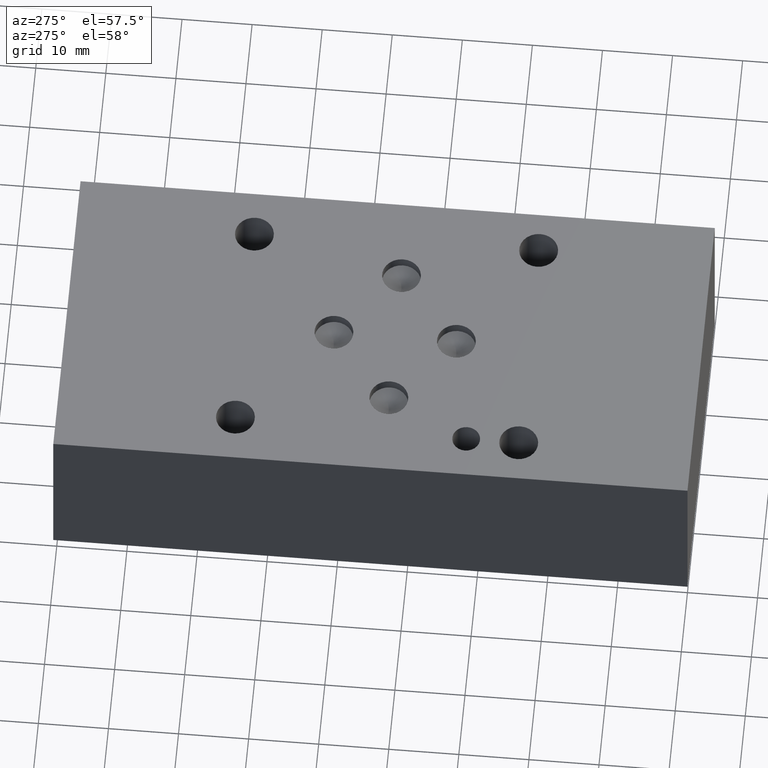
[diagram: clean part render]
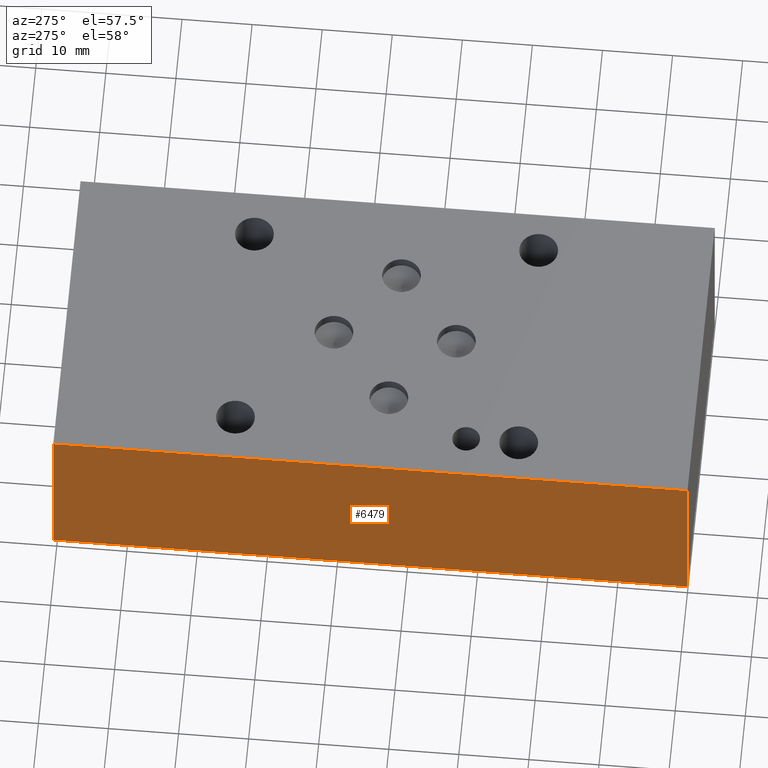
[diagram: same view with one face highlighted and labeled with its STEP entity id]
A machine part, auxiliary view. The second image highlights one B-rep face of the part: STEP entity #6479.
In plain terms, the highlighted planar face has unit normal (-1, 0, 0).
Its self-contained STEP definition (entity closure, byte-faithful):
#354=PLANE('',#6795);
#684=FACE_OUTER_BOUND('',#1051,.T.);
#1051=EDGE_LOOP('',(#5769,#5770,#5771,#5772));
#1714=LINE('',#10895,#2384);
#1730=LINE('',#10964,#2400);
#1731=LINE('',#10966,#2401);
#1732=LINE('',#10967,#2402);
#2384=VECTOR('',#7975,10.);
#2400=VECTOR('',#8057,10.);
#2401=VECTOR('',#8058,10.);
#2402=VECTOR('',#8059,10.);
#3134=VERTEX_POINT('',#10892);
#3135=VERTEX_POINT('',#10894);
#3155=VERTEX_POINT('',#10963);
#3156=VERTEX_POINT('',#10965);
#3998=EDGE_CURVE('',#3135,#3134,#1714,.T.);
#4032=EDGE_CURVE('',#3134,#3155,#1730,.T.);
#4033=EDGE_CURVE('',#3156,#3155,#1731,.T.);
#4034=EDGE_CURVE('',#3135,#3156,#1732,.T.);
#5769=ORIENTED_EDGE('',*,*,#3998,.T.);
#5770=ORIENTED_EDGE('',*,*,#4032,.T.);
#5771=ORIENTED_EDGE('',*,*,#4033,.F.);
#5772=ORIENTED_EDGE('',*,*,#4034,.F.);
#6479=ADVANCED_FACE('',(#684),#354,.T.);
#6795=AXIS2_PLACEMENT_3D('',#10962,#8055,#8056);
#7975=DIRECTION('',(0.,-1.,0.));
#8055=DIRECTION('center_axis',(-1.,0.,0.));
#8056=DIRECTION('ref_axis',(0.,-1.,0.));
#8057=DIRECTION('',(0.,0.,1.));
#8058=DIRECTION('',(0.,-1.,0.));
#8059=DIRECTION('',(0.,0.,1.));
#10892=CARTESIAN_POINT('',(0.,0.,0.));
#10894=CARTESIAN_POINT('',(0.,90.5002,0.));
#10895=CARTESIAN_POINT('',(0.,90.5002,0.));
#10962=CARTESIAN_POINT('Origin',(0.,90.5002,0.));
#10963=CARTESIAN_POINT('',(0.,0.,25.4));
#10964=CARTESIAN_POINT('',(0.,0.,0.));
#10965=CARTESIAN_POINT('',(0.,90.5002,25.4));
#10966=CARTESIAN_POINT('',(0.,90.5002,25.4));
#10967=CARTESIAN_POINT('',(0.,90.5002,0.));